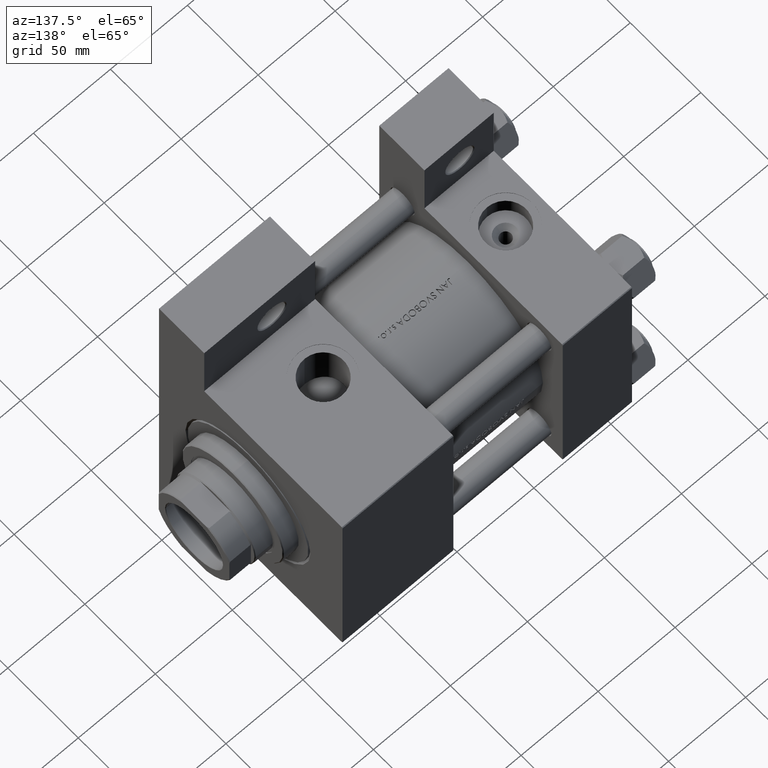
[diagram: clean part render]
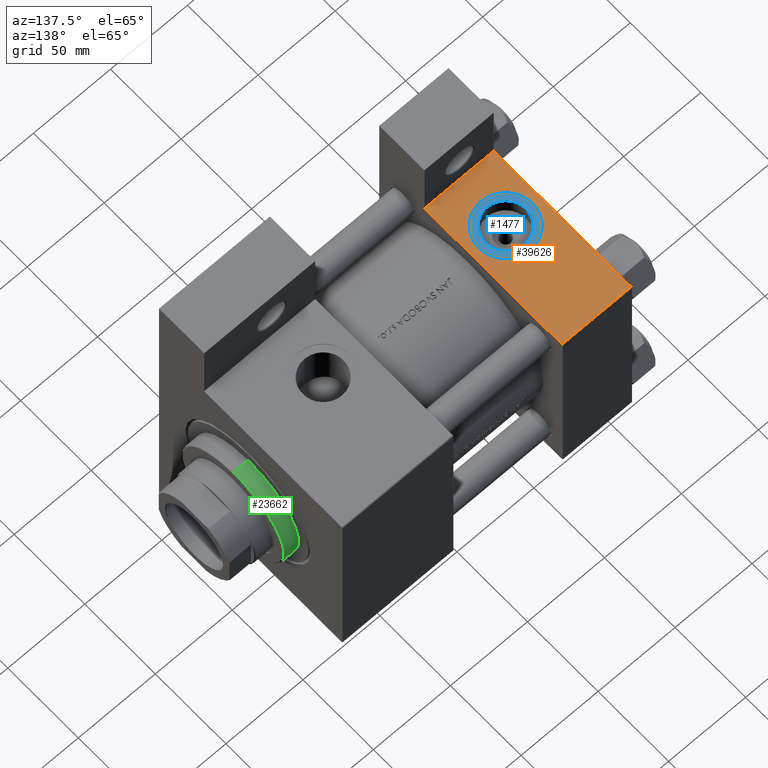
[diagram: same view with three faces highlighted in distinct colors, each labeled with its STEP entity id]
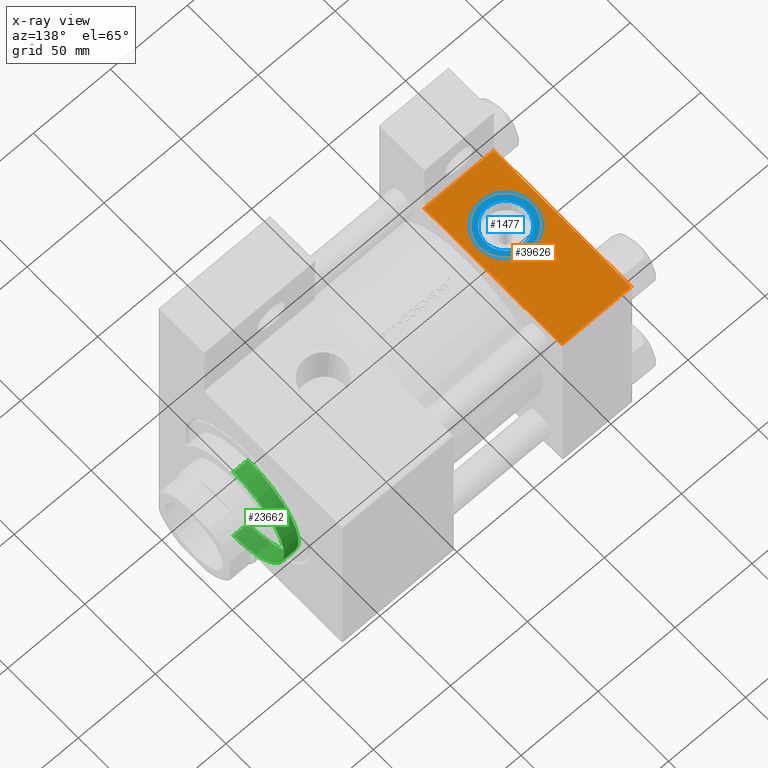
[diagram: x-ray of the same camera — body ghosted, the three highlighted faces saturated]
A machine part, auxiliary view with three faces highlighted in distinct colors.
The next image is the same camera in x-ray (body ghosted, the three faces saturated) — at least one of them is partly hidden behind the body in this view.
Their STEP definitions:

[orange] entity #39626 — the highlighted planar face has unit normal (0, 0, -1).
#1357 = CARTESIAN_POINT ( 'NONE',  ( 22.50000000000000000, -65.00000000000000000, 0.000000000000000000 ) ) ;
#1476 = VECTOR ( 'NONE', #44372, 1000.000000000000000 ) ;
#2161 = DIRECTION ( 'NONE',  ( -0.000000000000000000, 1.000000000000000000, 0.000000000000000000 ) ) ;
#2210 = DIRECTION ( 'NONE',  ( 0.000000000000000000, -1.000000000000000000, -8.673617379884036705E-17 ) ) ;
#3273 = CARTESIAN_POINT ( 'NONE',  ( 0.000000000000000000, -65.00000000000000000, 65.00000000000000000 ) ) ;
#5321 = FACE_OUTER_BOUND ( 'NONE', #23317, .T. ) ;
#5607 = VERTEX_POINT ( 'NONE', #29027 ) ;
#5699 = EDGE_CURVE ( 'NONE', #29284, #43606, #19901, .T. ) ;
#6122 = EDGE_CURVE ( 'NONE', #43606, #47162, #32696, .T. ) ;
#6555 = DIRECTION ( 'NONE',  ( 0.000000000000000000, 0.000000000000000000, -1.000000000000000000 ) ) ;
#6838 = EDGE_CURVE ( 'NONE', #34122, #47162, #31749, .T. ) ;
#6883 = CARTESIAN_POINT ( 'NONE',  ( 45.00000000000000000, -65.00000000000000000, 64.50000000000000000 ) ) ;
#7950 = CIRCLE ( 'NONE', #41384, 17.50000000000000000 ) ;
#9210 = VECTOR ( 'NONE', #48018, 1000.000000000000000 ) ;
#9587 = DIRECTION ( 'NONE',  ( -1.000000000000000000, 0.000000000000000000, 0.000000000000000000 ) ) ;
#9957 = EDGE_CURVE ( 'NONE', #29284, #34122, #33422, .T. ) ;
#11533 = VECTOR ( 'NONE', #9587, 1000.000000000000000 ) ;
#13793 = CARTESIAN_POINT ( 'NONE',  ( 1.020153353658907479E-15, -65.00000000000000000, -33.00000000000000000 ) ) ;
#19666 = ORIENTED_EDGE ( 'NONE', *, *, #9957, .F. ) ;
#19901 = LINE ( 'NONE', #27454, #23955 ) ;
#20147 = DIRECTION ( 'NONE',  ( -1.000000000000000000, 0.000000000000000000, 0.000000000000000000 ) ) ;
#20223 = EDGE_CURVE ( 'NONE', #35216, #5607, #7950, .T. ) ;
#20594 = PLANE ( 'NONE',  #30703 ) ;
#20833 = FACE_BOUND ( 'NONE', #35861, .T. ) ;
#21832 = CARTESIAN_POINT ( 'NONE',  ( 22.50000000000000355, -65.00000000000000000, 17.50000000000000000 ) ) ;
#23317 = EDGE_LOOP ( 'NONE', ( #35047, #19666, #40532, #43294 ) ) ;
#23955 = VECTOR ( 'NONE', #20147, 1000.000000000000000 ) ;
#25417 = CARTESIAN_POINT ( 'NONE',  ( 45.00000000000000000, -65.00000000000000000, -33.00000000000000000 ) ) ;
#25742 = ORIENTED_EDGE ( 'NONE', *, *, #20223, .F. ) ;
#26197 = CIRCLE ( 'NONE', #36329, 17.50000000000000000 ) ;
#27454 = CARTESIAN_POINT ( 'NONE',  ( 45.00000000000000000, -65.00000000000000000, 64.50000000000000000 ) ) ;
#29027 = CARTESIAN_POINT ( 'NONE',  ( 22.50000000000000000, -65.00000000000000000, -17.50000000000000000 ) ) ;
#29284 = VERTEX_POINT ( 'NONE', #6883 ) ;
#30703 = AXIS2_PLACEMENT_3D ( 'NONE', #35471, #2161, #31820 ) ;
#31585 = CARTESIAN_POINT ( 'NONE',  ( 0.000000000000000000, -65.00000000000000000, 64.50000000000000000 ) ) ;
#31749 = LINE ( 'NONE', #46580, #11533 ) ;
#31820 = DIRECTION ( 'NONE',  ( 0.000000000000000000, -0.000000000000000000, 1.000000000000000000 ) ) ;
#32696 = LINE ( 'NONE', #3273, #1476 ) ;
#33422 = LINE ( 'NONE', #44623, #9210 ) ;
#34122 = VERTEX_POINT ( 'NONE', #25417 ) ;
#34188 = DIRECTION ( 'NONE',  ( 0.000000000000000000, -1.000000000000000000, -8.673617379884036705E-17 ) ) ;
#35047 = ORIENTED_EDGE ( 'NONE', *, *, #6838, .F. ) ;
#35216 = VERTEX_POINT ( 'NONE', #21832 ) ;
#35471 = CARTESIAN_POINT ( 'NONE',  ( 45.00000000000000000, -65.00000000000000000, 65.00000000000000000 ) ) ;
#35521 = CARTESIAN_POINT ( 'NONE',  ( 22.50000000000000000, -65.00000000000000000, 0.000000000000000000 ) ) ;
#35861 = EDGE_LOOP ( 'NONE', ( #43882, #25742 ) ) ;
#36329 = AXIS2_PLACEMENT_3D ( 'NONE', #1357, #34188, #44898 ) ;
#39626 = ADVANCED_FACE ( 'NONE', ( #20833, #5321 ), #20594, .F. ) ;
#40532 = ORIENTED_EDGE ( 'NONE', *, *, #5699, .T. ) ;
#41384 = AXIS2_PLACEMENT_3D ( 'NONE', #35521, #2210, #6555 ) ;
#43294 = ORIENTED_EDGE ( 'NONE', *, *, #6122, .T. ) ;
#43606 = VERTEX_POINT ( 'NONE', #31585 ) ;
#43882 = ORIENTED_EDGE ( 'NONE', *, *, #47991, .F. ) ;
#44372 = DIRECTION ( 'NONE',  ( 0.000000000000000000, 0.000000000000000000, -1.000000000000000000 ) ) ;
#44623 = CARTESIAN_POINT ( 'NONE',  ( 45.00000000000000000, -65.00000000000000000, 65.00000000000000000 ) ) ;
#44898 = DIRECTION ( 'NONE',  ( 0.000000000000000000, 0.000000000000000000, -1.000000000000000000 ) ) ;
#46580 = CARTESIAN_POINT ( 'NONE',  ( 1.020153353658907084E-15, -65.00000000000001421, -33.00000000000000000 ) ) ;
#47162 = VERTEX_POINT ( 'NONE', #13793 ) ;
#47991 = EDGE_CURVE ( 'NONE', #5607, #35216, #26197, .T. ) ;
#48018 = DIRECTION ( 'NONE',  ( 0.000000000000000000, 0.000000000000000000, -1.000000000000000000 ) ) ;

[blue] entity #1477 — the highlighted planar face has unit normal (0, -0, 1).
#651 = DIRECTION ( 'NONE',  ( 0.000000000000000000, 0.000000000000000000, -1.000000000000000000 ) ) ;
#935 = VERTEX_POINT ( 'NONE', #30133 ) ;
#1341 = AXIS2_PLACEMENT_3D ( 'NONE', #15626, #37799, #37327 ) ;
#1477 = ADVANCED_FACE ( 'NONE', ( #30737, #19274 ), #26581, .T. ) ;
#3722 = AXIS2_PLACEMENT_3D ( 'NONE', #45764, #12407, #41160 ) ;
#3749 = CIRCLE ( 'NONE', #3722, 17.50000000000000000 ) ;
#3954 = EDGE_LOOP ( 'NONE', ( #6857, #19603 ) ) ;
#4291 = CARTESIAN_POINT ( 'NONE',  ( 22.50000000000000000, -64.79999999999999716, 1.734723475976807403E-17 ) ) ;
#5060 = EDGE_LOOP ( 'NONE', ( #21459, #25968 ) ) ;
#6692 = EDGE_CURVE ( 'NONE', #935, #39099, #20830, .T. ) ;
#6857 = ORIENTED_EDGE ( 'NONE', *, *, #22048, .F. ) ;
#12407 = DIRECTION ( 'NONE',  ( 0.000000000000000000, -1.000000000000000000, -8.673617379884036705E-17 ) ) ;
#13928 = CARTESIAN_POINT ( 'NONE',  ( 22.50000000000000000, -64.79999999999999716, 1.734723475976770117E-17 ) ) ;
#15626 = CARTESIAN_POINT ( 'NONE',  ( 22.50000000000000000, -64.79999999999999716, 1.734723475976807403E-17 ) ) ;
#16146 = DIRECTION ( 'NONE',  ( 0.000000000000000000, -1.000000000000000000, -8.673617379884036705E-17 ) ) ;
#17306 = AXIS2_PLACEMENT_3D ( 'NONE', #13928, #17326, #44369 ) ;
#17326 = DIRECTION ( 'NONE',  ( 0.000000000000000000, -1.000000000000000000, -8.673617379884036705E-17 ) ) ;
#17577 = CARTESIAN_POINT ( 'NONE',  ( 22.50000000000000000, -64.79999999999999716, 13.22000000000000419 ) ) ;
#19274 = FACE_OUTER_BOUND ( 'NONE', #5060, .T. ) ;
#19603 = ORIENTED_EDGE ( 'NONE', *, *, #34426, .F. ) ;
#20830 = CIRCLE ( 'NONE', #27063, 17.50000000000000000 ) ;
#21199 = CIRCLE ( 'NONE', #17306, 13.22000000000000419 ) ;
#21459 = ORIENTED_EDGE ( 'NONE', *, *, #6692, .T. ) ;
#22008 = CIRCLE ( 'NONE', #30575, 13.22000000000000419 ) ;
#22048 = EDGE_CURVE ( 'NONE', #35515, #26496, #22008, .T. ) ;
#23658 = DIRECTION ( 'NONE',  ( 0.000000000000000000, -1.000000000000000000, -8.673617379884036705E-17 ) ) ;
#25968 = ORIENTED_EDGE ( 'NONE', *, *, #44860, .T. ) ;
#26496 = VERTEX_POINT ( 'NONE', #17577 ) ;
#26581 = PLANE ( 'NONE',  #1341 ) ;
#27063 = AXIS2_PLACEMENT_3D ( 'NONE', #4291, #16146, #651 ) ;
#28527 = CARTESIAN_POINT ( 'NONE',  ( 22.50000000000000000, -64.79999999999999716, 1.734723475976770117E-17 ) ) ;
#30133 = CARTESIAN_POINT ( 'NONE',  ( 22.50000000000000000, -64.79999999999999716, -17.50000000000000000 ) ) ;
#30575 = AXIS2_PLACEMENT_3D ( 'NONE', #28527, #23658, #35605 ) ;
#30737 = FACE_BOUND ( 'NONE', #3954, .T. ) ;
#34426 = EDGE_CURVE ( 'NONE', #26496, #35515, #21199, .T. ) ;
#35515 = VERTEX_POINT ( 'NONE', #40003 ) ;
#35605 = DIRECTION ( 'NONE',  ( 0.000000000000000000, 0.000000000000000000, -1.000000000000000000 ) ) ;
#36071 = CARTESIAN_POINT ( 'NONE',  ( 22.50000000000000355, -64.79999999999999716, 17.50000000000000000 ) ) ;
#37327 = DIRECTION ( 'NONE',  ( 0.000000000000000000, 8.673617379884036705E-17, -1.000000000000000000 ) ) ;
#37799 = DIRECTION ( 'NONE',  ( 0.000000000000000000, -1.000000000000000000, -8.673617379884036705E-17 ) ) ;
#39099 = VERTEX_POINT ( 'NONE', #36071 ) ;
#40003 = CARTESIAN_POINT ( 'NONE',  ( 22.50000000000000000, -64.79999999999999716, -13.22000000000000419 ) ) ;
#41160 = DIRECTION ( 'NONE',  ( 0.000000000000000000, 0.000000000000000000, -1.000000000000000000 ) ) ;
#44369 = DIRECTION ( 'NONE',  ( 0.000000000000000000, 0.000000000000000000, -1.000000000000000000 ) ) ;
#44860 = EDGE_CURVE ( 'NONE', #39099, #935, #3749, .T. ) ;
#45764 = CARTESIAN_POINT ( 'NONE',  ( 22.50000000000000000, -64.79999999999999716, 1.734723475976807403E-17 ) ) ;

[green] entity #23662 — the highlighted cylindrical surface (partial cylindrical patch) has radius 36 mm, axis along (-1, -0, 0).
#127 = ORIENTED_EDGE ( 'NONE', *, *, #46780, .T. ) ;
#676 = VECTOR ( 'NONE', #45081, 1000.000000000000000 ) ;
#2664 = CARTESIAN_POINT ( 'NONE',  ( 0.000000000000000000, 0.000000000000000000, 38.69999999999999574 ) ) ;
#2961 = EDGE_CURVE ( 'NONE', #15440, #38127, #21634, .T. ) ;
#2971 = VERTEX_POINT ( 'NONE', #47697 ) ;
#4665 = CARTESIAN_POINT ( 'NONE',  ( 36.00000000000000000, 4.408728476930470856E-15, 28.69999999999999929 ) ) ;
#6109 = CARTESIAN_POINT ( 'NONE',  ( 36.00000000000000000, 4.408728476930470856E-15, 38.19999999999998863 ) ) ;
#6461 = DIRECTION ( 'NONE',  ( 1.000000000000000000, 0.000000000000000000, 0.000000000000000000 ) ) ;
#6554 = ORIENTED_EDGE ( 'NONE', *, *, #2961, .T. ) ;
#6586 = DIRECTION ( 'NONE',  ( -0.000000000000000000, -0.000000000000000000, -1.000000000000000000 ) ) ;
#9151 = EDGE_CURVE ( 'NONE', #43460, #2971, #11018, .T. ) ;
#9843 = CARTESIAN_POINT ( 'NONE',  ( 0.000000000000000000, 0.000000000000000000, 38.19999999999998863 ) ) ;
#9849 = DIRECTION ( 'NONE',  ( 0.000000000000000000, 0.000000000000000000, 1.000000000000000000 ) ) ;
#11018 = LINE ( 'NONE', #37776, #676 ) ;
#15304 = VECTOR ( 'NONE', #6586, 1000.000000000000000 ) ;
#15440 = VERTEX_POINT ( 'NONE', #6109 ) ;
#17107 = AXIS2_PLACEMENT_3D ( 'NONE', #2664, #39628, #22061 ) ;
#19796 = AXIS2_PLACEMENT_3D ( 'NONE', #28114, #9849, #6461 ) ;
#21356 = CIRCLE ( 'NONE', #19796, 36.00000000000000000 ) ;
#21634 = LINE ( 'NONE', #43817, #15304 ) ;
#22061 = DIRECTION ( 'NONE',  ( -1.000000000000000000, 0.000000000000000000, 0.000000000000000000 ) ) ;
#22939 = EDGE_CURVE ( 'NONE', #38127, #2971, #21356, .T. ) ;
#23662 = ADVANCED_FACE ( 'NONE', ( #36938 ), #25475, .T. ) ;
#25475 = CYLINDRICAL_SURFACE ( 'NONE', #17107, 36.00000000000000000 ) ;
#28114 = CARTESIAN_POINT ( 'NONE',  ( 0.000000000000000000, 0.000000000000000000, 28.69999999999999929 ) ) ;
#35900 = DIRECTION ( 'NONE',  ( 1.000000000000000000, 0.000000000000000000, 0.000000000000000000 ) ) ;
#36938 = FACE_OUTER_BOUND ( 'NONE', #41993, .T. ) ;
#37776 = CARTESIAN_POINT ( 'NONE',  ( -36.00000000000000000, 0.000000000000000000, 38.69999999999999574 ) ) ;
#37950 = ORIENTED_EDGE ( 'NONE', *, *, #9151, .F. ) ;
#38127 = VERTEX_POINT ( 'NONE', #4665 ) ;
#38315 = ORIENTED_EDGE ( 'NONE', *, *, #22939, .T. ) ;
#38595 = CIRCLE ( 'NONE', #44821, 36.00000000000000000 ) ;
#39559 = DIRECTION ( 'NONE',  ( 0.000000000000000000, 0.000000000000000000, -1.000000000000000000 ) ) ;
#39628 = DIRECTION ( 'NONE',  ( -0.000000000000000000, -0.000000000000000000, -1.000000000000000000 ) ) ;
#40632 = CARTESIAN_POINT ( 'NONE',  ( -36.00000000000000000, 0.000000000000000000, 38.19999999999998863 ) ) ;
#41993 = EDGE_LOOP ( 'NONE', ( #127, #6554, #38315, #37950 ) ) ;
#43460 = VERTEX_POINT ( 'NONE', #40632 ) ;
#43817 = CARTESIAN_POINT ( 'NONE',  ( 36.00000000000000000, 4.408728476930470856E-15, 38.69999999999999574 ) ) ;
#44821 = AXIS2_PLACEMENT_3D ( 'NONE', #9843, #39559, #35900 ) ;
#45081 = DIRECTION ( 'NONE',  ( -0.000000000000000000, -0.000000000000000000, -1.000000000000000000 ) ) ;
#46780 = EDGE_CURVE ( 'NONE', #43460, #15440, #38595, .T. ) ;
#47697 = CARTESIAN_POINT ( 'NONE',  ( -36.00000000000000000, 0.000000000000000000, 28.69999999999999929 ) ) ;